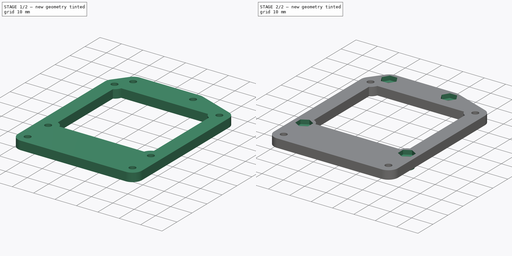
[diagram: build sequence overview — one tinted view per stage of 2, left to right]
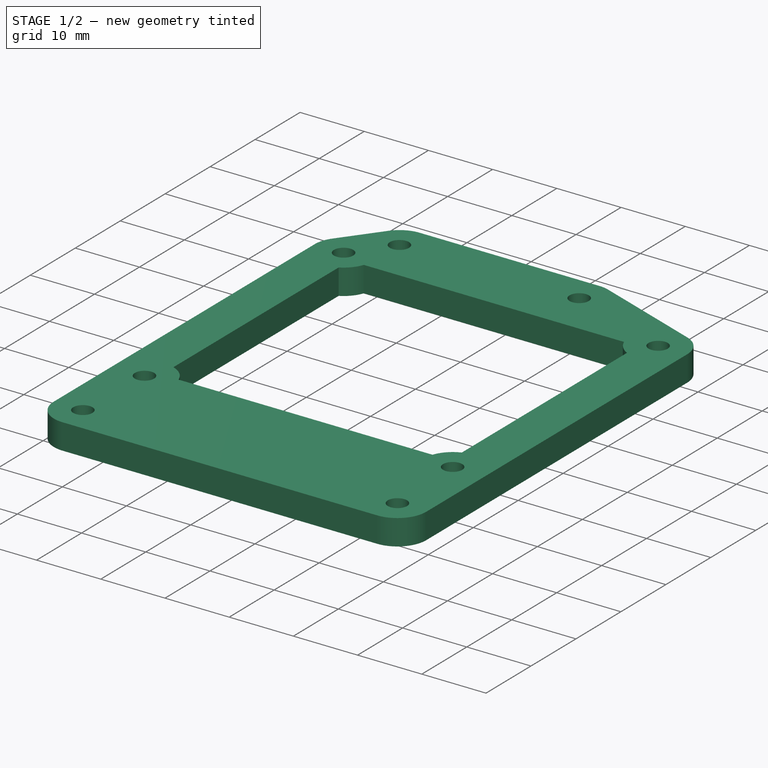
[diagram: stage 1 of 2 — iso view after this stage's code; geometry added in this stage tinted green]
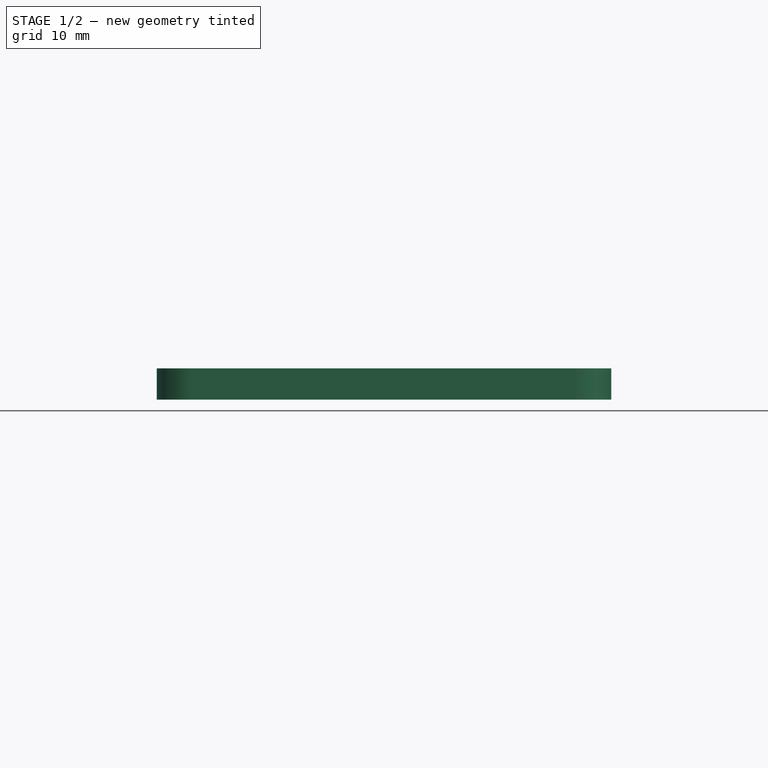
[diagram: stage 1 of 2 — front view after this stage's code; geometry added in this stage tinted green]
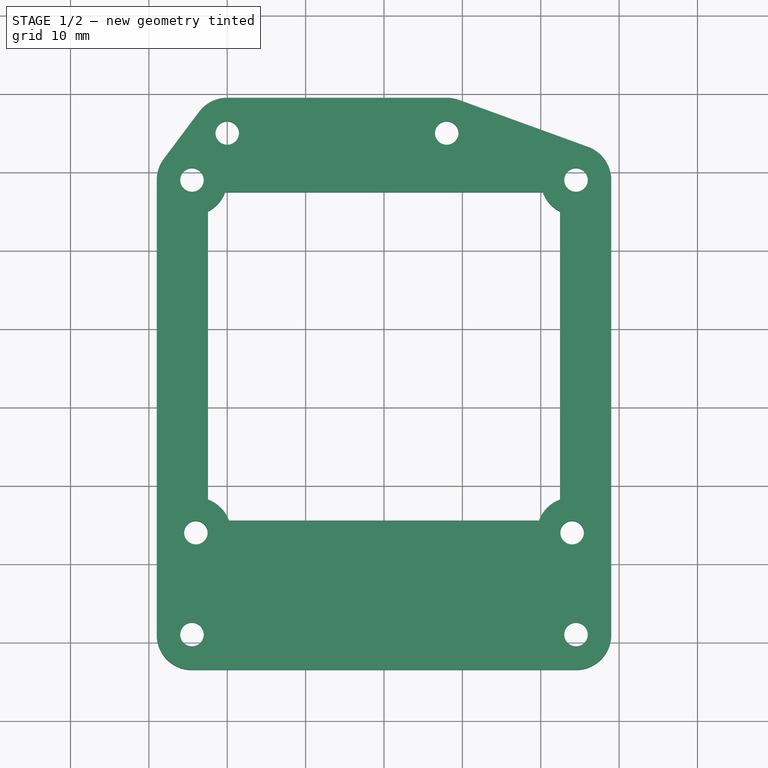
[diagram: stage 1 of 2 — top view after this stage's code; geometry added in this stage tinted green]
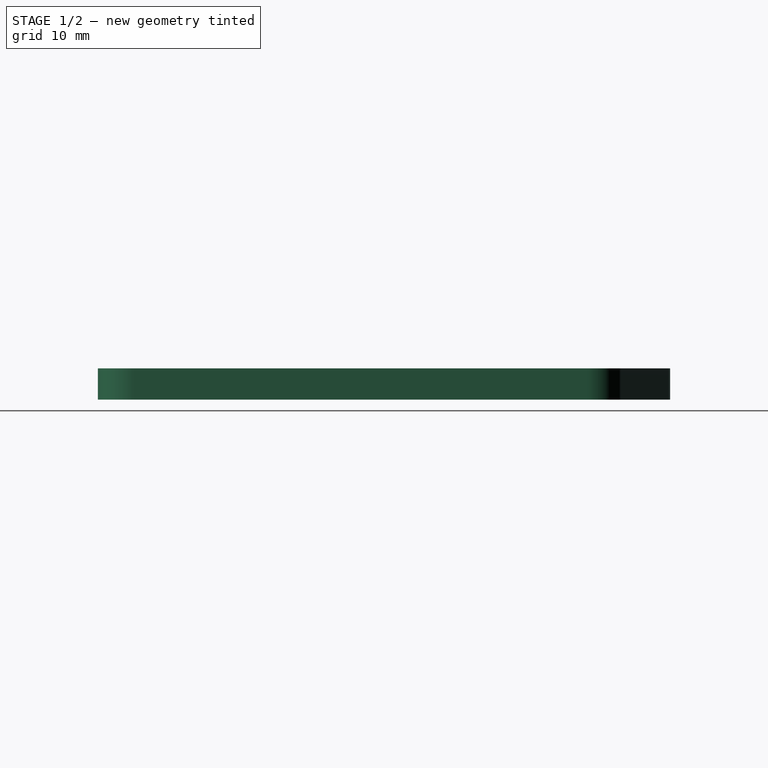
[diagram: stage 1 of 2 — right view after this stage's code; geometry added in this stage tinted green]
FCSTD DOCUMENT  (FreeCAD 0.17R13541 (Git))
Label: RaspiToUNO
License: All rights reserved
LicenseURL: http://en.wikipedia.org/wiki/All_rights_reserved
objects: Sketcher::SketchObject×4, PartDesign::Pad×2, PartDesign::Pocket×2, PartDesign::Body×1
note: 13 computed .brp shape members not serialized (recipe doc carries the construction recipe); baked Part::Feature solids carry a one-line shape summary decoded from their .brp

FEATURE [Sketcher::SketchObject] Sketch
  MapMode = 5
  Support = -> [XY_Plane]
  sketch-geometry (52):
    g0: ArcOfCircle CenterX=-24.5 CenterY=29 CenterZ=0 NormalX=0 NormalY=0 NormalZ=1 AngleXU=0 Radius=4.5 StartAngle=5.18266 EndAngle=5.93412
    g1: ArcOfCircle CenterX=24.5 CenterY=29 CenterZ=0 NormalX=0 NormalY=0 NormalZ=1 AngleXU=0 Radius=4.5 StartAngle=0 EndAngle=1.22203
    g2: ArcOfCircle CenterX=-24.5 CenterY=-29 CenterZ=0 NormalX=0 NormalY=0 NormalZ=1 AngleXU=0 Radius=4.5 StartAngle=3.14159 EndAngle=4.71239
    g3: ArcOfCircle CenterX=24.5 CenterY=-29 CenterZ=0 NormalX=0 NormalY=0 NormalZ=1 AngleXU=0 Radius=4.5 StartAngle=4.71239 EndAngle=6.28319
    g4: GeomPoint X=0 Y=29 Z=0
    g5: ArcOfCircle CenterX=-24 CenterY=-16 CenterZ=0 NormalX=0 NormalY=0 NormalZ=1 AngleXU=0 Radius=4.5 StartAngle=0.349066 EndAngle=1.22173
    g6: ArcOfCircle CenterX=24 CenterY=-16 CenterZ=0 NormalX=0 NormalY=0 NormalZ=1 AngleXU=0 Radius=4.5 StartAngle=1.91986 EndAngle=2.79253
    g7: ArcOfCircle CenterX=-20 CenterY=35 CenterZ=0 NormalX=0 NormalY=0 NormalZ=1 AngleXU=0 Radius=4.5 StartAngle=1.5708 EndAngle=2.49809
    g8: ArcOfCircle CenterX=8 CenterY=35 CenterZ=0 NormalX=0 NormalY=0 NormalZ=1 AngleXU=0 Radius=4.5 StartAngle=1.22203 EndAngle=1.5708
    g9: GeomPoint X=0 Y=-16 Z=0
    g10: GeomPoint X=0 Y=-29 Z=0
    g11: LineSegment [constr] StartX=0 StartY=-16 StartZ=0 EndX=0 EndY=-29 EndZ=0
    g12: LineSegment StartX=22.4609 StartY=-11.7714 StartZ=0 EndX=22.4609 EndY=24.9885 EndZ=0
    g13: LineSegment StartX=20.2714 StartY=27.4609 StartZ=0 EndX=-20.2714 EndY=27.4609 EndZ=0
    g14: LineSegment StartX=-22.4609 StartY=24.9885 StartZ=0 EndX=-22.4609 EndY=-11.7714 EndZ=0
    g15: Circle CenterX=-24.5 CenterY=29 CenterZ=0 NormalX=0 NormalY=0 NormalZ=1 AngleXU=0 Radius=1.5
    g16: Circle CenterX=-20 CenterY=35 CenterZ=0 NormalX=0 NormalY=0 NormalZ=1 AngleXU=0 Radius=1.5
    g17: Circle CenterX=8 CenterY=35 CenterZ=0 NormalX=0 NormalY=0 NormalZ=1 AngleXU=0 Radius=1.5
    g18: Circle CenterX=24.5 CenterY=29 CenterZ=0 NormalX=0 NormalY=0 NormalZ=1 AngleXU=0 Radius=1.5
    g19: Circle CenterX=24.5 CenterY=-29 CenterZ=0 NormalX=0 NormalY=0 NormalZ=1 AngleXU=0 Radius=1.5
    g20: Circle CenterX=-24 CenterY=-16 CenterZ=0 NormalX=0 NormalY=0 NormalZ=1 AngleXU=0 Radius=1.5
    g21: Circle CenterX=-24.5 CenterY=-29 CenterZ=0 NormalX=0 NormalY=0 NormalZ=1 AngleXU=0 Radius=1.5
    g22: ArcOfCircle CenterX=-24.5 CenterY=29 CenterZ=0 NormalX=0 NormalY=0 NormalZ=1 AngleXU=0 Radius=4.5 StartAngle=2.49809 EndAngle=3.14159
    g23: LineSegment [constr] StartX=-24 StartY=35 StartZ=0 EndX=-20 EndY=35 EndZ=0
    g24: ArcOfCircle CenterX=24.5 CenterY=29 CenterZ=0 NormalX=0 NormalY=0 NormalZ=1 AngleXU=0 Radius=4.5 StartAngle=3.49066 EndAngle=4.24211
    g25: LineSegment [constr] StartX=-24 StartY=-16 StartZ=0 EndX=24 EndY=-16 EndZ=0
    g26: LineSegment StartX=-19.7714 StartY=-14.4609 StartZ=0 EndX=19.7714 EndY=-14.4609 EndZ=0
    g27: LineSegment [constr] StartX=-20 StartY=35 StartZ=0 EndX=8 EndY=35 EndZ=0
    g28: LineSegment [constr] StartX=-22.4609 StartY=-11.7714 StartZ=0 EndX=-24 EndY=-16 EndZ=0
    g29: LineSegment [constr] StartX=-19.7714 StartY=-14.4609 StartZ=0 EndX=-24 EndY=-16 EndZ=0
    g30: LineSegment [constr] StartX=24 StartY=-16 StartZ=0 EndX=19.7714 EndY=-14.4609 EndZ=0
    g31: LineSegment [constr] StartX=24 StartY=-16 StartZ=0 EndX=22.4609 EndY=-11.7714 EndZ=0
    g32: LineSegment [constr] StartX=20.2714 StartY=27.4609 StartZ=0 EndX=24.5 EndY=29 EndZ=0
    g33: LineSegment [constr] StartX=22.4609 StartY=24.9885 StartZ=0 EndX=24.5 EndY=29 EndZ=0
    g34: LineSegment [constr] StartX=-22.4609 StartY=24.9885 StartZ=0 EndX=-24.5 EndY=29 EndZ=0
    g35: LineSegment [constr] StartX=-20.2714 StartY=27.4609 StartZ=0 EndX=-24.5 EndY=29 EndZ=0
    g36: LineSegment [constr] StartX=-24 StartY=-16 StartZ=0 EndX=-24 EndY=35 EndZ=0
    g37: LineSegment [constr] StartX=-24.5 StartY=-29 StartZ=0 EndX=24.5 EndY=-29 EndZ=0
    g38: LineSegment [constr] StartX=24.5 StartY=29 StartZ=0 EndX=24.5 EndY=-29 EndZ=0
    g39: LineSegment [constr] StartX=-24.5 StartY=29 StartZ=0 EndX=-24.5 EndY=-29 EndZ=0
    g40: LineSegment [constr] StartX=24 StartY=-16 StartZ=0 EndX=24 EndY=35 EndZ=0
    g41: LineSegment [constr] StartX=8 StartY=35 StartZ=0 EndX=24 EndY=35 EndZ=0
    g42: LineSegment [constr] StartX=-24.5 StartY=29 StartZ=0 EndX=24.5 EndY=29 EndZ=0
    g43: Circle CenterX=24 CenterY=-16 CenterZ=0 NormalX=0 NormalY=0 NormalZ=1 AngleXU=0 Radius=1.5
    g44: LineSegment [constr] StartX=-23.6 StartY=37.7 StartZ=0 EndX=-20 EndY=35 EndZ=0
    g45: LineSegment StartX=24.5 StartY=-33.5 StartZ=0 EndX=-24.5 EndY=-33.5 EndZ=0
    g46: LineSegment StartX=-29 StartY=29 StartZ=0 EndX=-29 EndY=-29 EndZ=0
    g47: LineSegment StartX=-28.1 StartY=31.7 StartZ=0 EndX=-23.6 EndY=37.7 EndZ=0
    g48: LineSegment StartX=29 StartY=-29 StartZ=0 EndX=29 EndY=29 EndZ=0
    g49: LineSegment StartX=9.53784 StartY=39.2291 StartZ=0 EndX=26.0378 EndY=33.2291 EndZ=0
    g50: GeomPoint X=-24.5 Y=0 Z=0
    g51: LineSegment StartX=-20 StartY=39.5 StartZ=0 EndX=8 EndY=39.5 EndZ=0
  constraints (121):
    c: PointOnObject(g9,g-2)
    c: Coincident(g11,g9)
    c: Coincident(g11,g10)
    c: Distance(g11) = 13
    c: Vertical(g12)
    c: Horizontal(g13)
    c: Vertical(g14)
    c: Coincident(g15,g0)
    c: Radius(g15) = 1.5
    c: Coincident(g16,g7)
    c: Coincident(g17,g8)
    c: Radius(g16) = 1.5
    c: Coincident(g18,g1)
    c: Coincident(g19,g3)
    c: Coincident(g20,g5)
    c: Coincident(g21,g2)
    c: Radius(g20) = 1.5
    c: Radius(g21) = 1.5
    c: Radius(g19) = 1.5
    c: Radius(g18) = 1.5
    c: Coincident(g0,g14)
    c: Coincident(g0,g13)
    c: Coincident(g0,g22)
    c: Coincident(g23,g7)
    c: Horizontal(g23)
    c: Coincident(g24,g12)
    c: Coincident(g24,g13)
    c: Coincident(g1,g24)
    c: Coincident(g6,g12)
    c: Coincident(g5,g14)
    c: Coincident(g25,g5)
    c: Coincident(g25,g6)
    c: Horizontal(g25)
    c: Symmetric(g25,g25,g9)
    c: Coincident(g26,g5)
    c: Coincident(g26,g6)
    c: Horizontal(g26)
    c: Coincident(g27,g7)
    c: Coincident(g27,g8)
    c: Horizontal(g27)
    c: Distance(g25) = 48
    c: Equal(g24,g1)
    c: Coincident(g28,g5)
    c: Coincident(g28,g5)
    c: Coincident(g29,g5)
    c: Coincident(g29,g5)
    c: Coincident(g30,g6)
    c: Coincident(g30,g6)
    c: Coincident(g31,g6)
    c: Coincident(g31,g6)
    c: Coincident(g32,g13)
    c: Coincident(g32,g1)
    c: Coincident(g33,g12)
    c: Coincident(g33,g1)
    c: Coincident(g34,g0)
    c: Coincident(g34,g0)
    c: Coincident(g35,g0)
    c: Coincident(g35,g0)
    c: Distance(g27) = 28
    c: Coincident(g36,g5)
    c: Coincident(g36,g23)
    c: Vertical(g36)
    c: Distance(g36) = 51
    c: Angle(g33,g1) = 0.523599
    c: Coincident(g37,g2)
    c: Coincident(g37,g3)
    c: Horizontal(g37)
    c: Distance(g37) = 49
    c: Coincident(g38,g1)
    c: Coincident(g38,g3)
    c: Vertical(g38)
    c: Coincident(g39,g0)
    c: Coincident(g39,g2)
    c: Vertical(g39)
    c: Coincident(g40,g6)
    c: Vertical(g40)
    c: Coincident(g41,g8)
    c: Coincident(g41,g40)
    c: Horizontal(g41)
    c: Coincident(g42,g0)
    c: Coincident(g42,g1)
    c: Horizontal(g42)
    c: PointOnObject(g10,g37)
    c: Coincident(g43,g6)
    c: Radius(g43) = 1.5
    c: Coincident(g44,g7)
    c: Coincident(g44,g7)
    c: Radius(g17) = 1.5
    c: Symmetric(g42,g42,g4)
    c: PointOnObject(g4,g-2)
    c: Symmetric(g37,g37,g10)
    c: Distance(g39) = 58
    c: Horizontal(g45)
    c: Coincident(g46,g2)
    c: Vertical(g46)
    c: Tangent(g46,g2)
    c: Vertical(g48)
    c: Tangent(g46,g22) = -1.5708
    c: Tangent(g47,g22) = 1.5708
    c: Tangent(g45,g2) = 1.5708
    c: Tangent(g45,g3) = 1.5708
    c: Tangent(g48,g3) = -1.5708
    c: Tangent(g48,g1) = -1.5708
    c: Tangent(g49,g1) = 1.5708
    c: Tangent(g49,g8) = 1.5708
    c: Tangent(g47,g7) = 1.5708
    c: PointOnObject(g50,g-1)
    c: Symmetric(g39,g39,g50)
    c: Equal(g0,g22)
    c: Angle(g35,g42) = 0.349066
    c: Radius(g5) = 4.5
    c: Radius(g6) = 4.5
    c: Angle(g40,g31) = 0.349066
    c: Angle(g25,g29) = 0.349066
    c: Angle(g28,g36) = 0.349066
    c: Horizontal(g51)
    c: Tangent(g51,g7) = 1.5708
    c: Tangent(g51,g8) = 1.5708
    c: Radius(g2) = 4.5
    c: Radius(g7) = 4.5
    c: Distance(g41) = 16
FEATURE [PartDesign::Pad] Pad
  Length = 2
  Length2 = 2
  Profile = -> Sketch
  Type = 4
FEATURE [Sketcher::SketchObject] Sketch001
  MapMode = 5
  Support = -> [XY_Plane]
  sketch-geometry (14):
    g0: Circle CenterX=-24.5 CenterY=-29 CenterZ=0 NormalX=0 NormalY=0 NormalZ=1 AngleXU=0 Radius=3
    g1: Circle CenterX=24.5 CenterY=-29 CenterZ=0 NormalX=0 NormalY=0 NormalZ=1 AngleXU=0 Radius=3
    g2: Circle CenterX=24.5 CenterY=29 CenterZ=0 NormalX=0 NormalY=0 NormalZ=1 AngleXU=0 Radius=3
    g3: Circle CenterX=-24.5 CenterY=29 CenterZ=0 NormalX=0 NormalY=0 NormalZ=1 AngleXU=0 Radius=3
    g4: LineSegment [constr] StartX=-24.5 StartY=29 StartZ=0 EndX=-24.5 EndY=-29 EndZ=0
    g5: LineSegment [constr] StartX=-24.5 StartY=-29 StartZ=0 EndX=24.5 EndY=-29 EndZ=0
    g6: LineSegment [constr] StartX=24.5 StartY=-29 StartZ=0 EndX=24.5 EndY=29 EndZ=0
    g7: LineSegment [constr] StartX=24.5 StartY=29 StartZ=0 EndX=-24.5 EndY=29 EndZ=0
    g8: Circle CenterX=-24.5 CenterY=29 CenterZ=0 NormalX=0 NormalY=0 NormalZ=1 AngleXU=0 Radius=1.5
    g9: Circle CenterX=24.5 CenterY=29 CenterZ=0 NormalX=0 NormalY=0 NormalZ=1 AngleXU=0 Radius=1.5
    g10: Circle CenterX=24.5 CenterY=-29 CenterZ=0 NormalX=0 NormalY=0 NormalZ=1 AngleXU=0 Radius=1.5
    g11: Circle CenterX=-24.5 CenterY=-29 CenterZ=0 NormalX=0 NormalY=0 NormalZ=1 AngleXU=0 Radius=1.5
    g12: GeomPoint X=0 Y=29 Z=0
    g13: GeomPoint X=-24.5 Y=0 Z=0
  constraints (30):
    c: Coincident(g4,g3)
    c: Coincident(g4,g0)
    c: Vertical(g4)
    c: Coincident(g5,g0)
    c: Coincident(g5,g1)
    c: Horizontal(g5)
    c: Coincident(g6,g1)
    c: Coincident(g6,g2)
    c: Vertical(g6)
    c: Coincident(g7,g2)
    c: Coincident(g7,g3)
    c: Horizontal(g7)
    c: Radius(g3) = 3
    c: Radius(g2) = 3
    c: Radius(g1) = 3
    c: Radius(g0) = 3
    c: Coincident(g8,g3)
    c: Coincident(g9,g2)
    c: Coincident(g10,g1)
    c: Coincident(g11,g0)
    c: Radius(g8) = 1.5
    c: Radius(g9) = 1.5
    c: Radius(g10) = 1.5
    c: Radius(g11) = 1.5
    c: Distance(g6) = 58
    c: Distance(g7) = 49
    c: PointOnObject(g12,g-2)
    c: PointOnObject(g13,g-1)
    c: Symmetric(g4,g4,g13)
    c: Symmetric(g7,g7,g12)
FEATURE [PartDesign::Pocket] Pocket
  BaseFeature = -> Pad
  Length = 2
  Length2 = 100
  Offset = 3
  Profile = -> Sketch001
  Type = 0
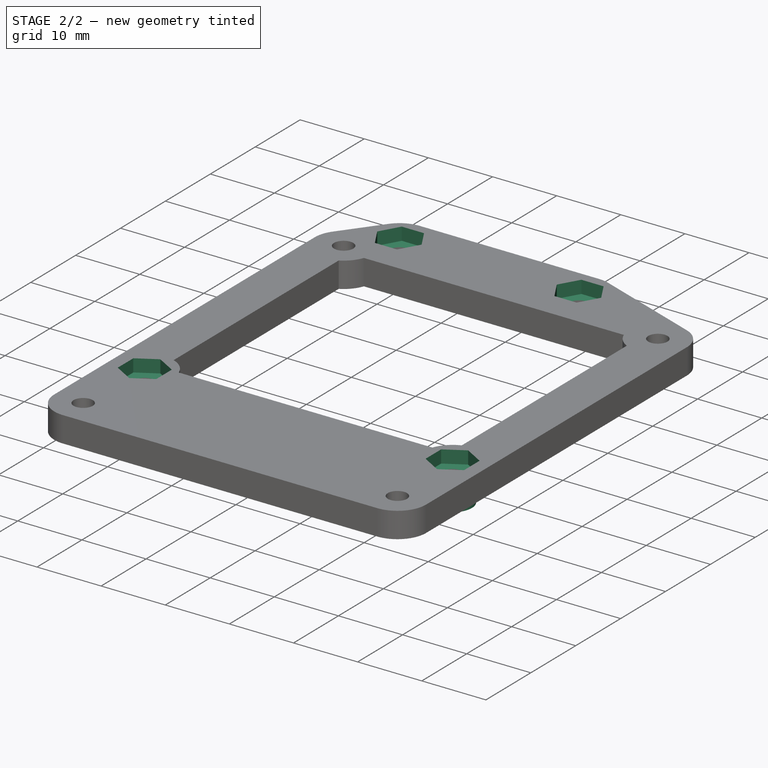
[diagram: stage 2 of 2 — iso view after this stage's code; geometry added in this stage tinted green]
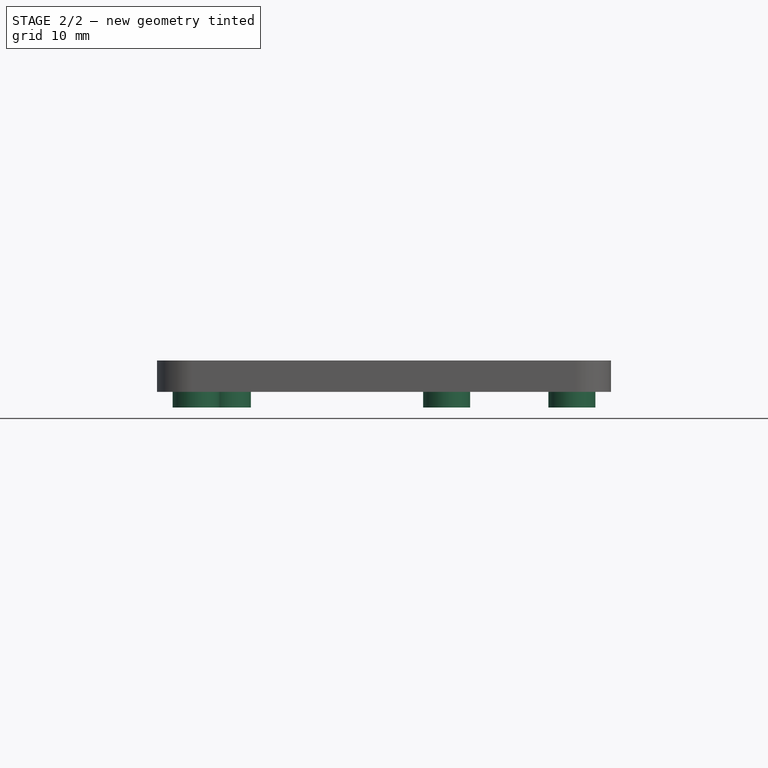
[diagram: stage 2 of 2 — front view after this stage's code; geometry added in this stage tinted green]
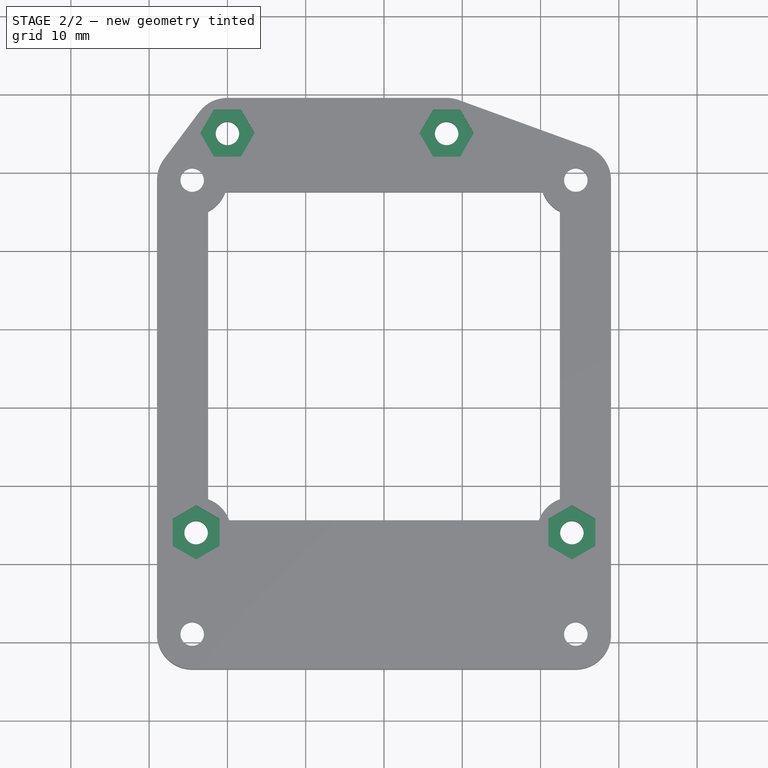
[diagram: stage 2 of 2 — top view after this stage's code; geometry added in this stage tinted green]
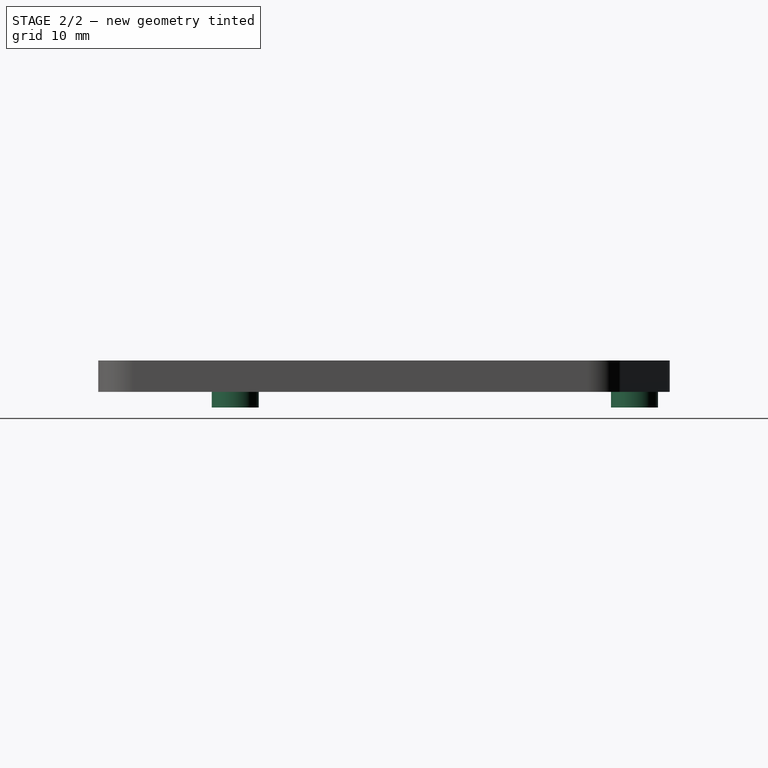
[diagram: stage 2 of 2 — right view after this stage's code; geometry added in this stage tinted green]
FEATURE [Sketcher::SketchObject] Sketch002
  MapMode = 5
  Support = -> [XY_Plane]
  sketch-geometry (22):
    g0: Circle CenterX=-20 CenterY=35 CenterZ=0 NormalX=0 NormalY=0 NormalZ=1 AngleXU=0 Radius=3
    g1: Circle CenterX=8 CenterY=35 CenterZ=0 NormalX=0 NormalY=0 NormalZ=1 AngleXU=0 Radius=3
    g2: Circle CenterX=24 CenterY=-16 CenterZ=0 NormalX=0 NormalY=0 NormalZ=1 AngleXU=0 Radius=3
    g3: Circle CenterX=-24 CenterY=-16 CenterZ=0 NormalX=0 NormalY=0 NormalZ=1 AngleXU=0 Radius=3
    g4: LineSegment [constr] StartX=-24 StartY=-16 StartZ=0 EndX=24 EndY=-16 EndZ=0
    g5: LineSegment [constr] StartX=24 StartY=-16 StartZ=0 EndX=24 EndY=35 EndZ=0
    g6: LineSegment [constr] StartX=24 StartY=35 StartZ=0 EndX=8 EndY=35 EndZ=0
    g7: LineSegment [constr] StartX=-20 StartY=35 StartZ=0 EndX=8 EndY=35 EndZ=0
    g8: LineSegment [constr] StartX=-20 StartY=35 StartZ=0 EndX=-24 EndY=35 EndZ=0
    g9: LineSegment [constr] StartX=-24 StartY=35 StartZ=0 EndX=-24 EndY=-16 EndZ=0
    g10: GeomPoint X=-24.5 Y=0 Z=0
    g11: GeomPoint X=0 Y=29 Z=0
    g12: Circle CenterX=-24 CenterY=-16 CenterZ=0 NormalX=0 NormalY=0 NormalZ=1 AngleXU=0 Radius=1.5
    g13: Circle CenterX=24 CenterY=-16 CenterZ=0 NormalX=0 NormalY=0 NormalZ=1 AngleXU=0 Radius=1.5
    g14: Circle CenterX=8 CenterY=35 CenterZ=0 NormalX=0 NormalY=0 NormalZ=1 AngleXU=0 Radius=1.5
    g15: Circle CenterX=-20 CenterY=35 CenterZ=0 NormalX=0 NormalY=0 NormalZ=1 AngleXU=0 Radius=1.5
    g16: LineSegment [constr] StartX=-24.5 StartY=-29 StartZ=0 EndX=24.5 EndY=-29 EndZ=0
    g17: LineSegment [constr] StartX=-24.5 StartY=-29 StartZ=0 EndX=-24.5 EndY=29 EndZ=0
    g18: LineSegment [constr] StartX=-24.5 StartY=29 StartZ=0 EndX=24.5 EndY=29 EndZ=0
    g19: LineSegment [constr] StartX=24.5 StartY=29 StartZ=0 EndX=24.5 EndY=-29 EndZ=0
    g20: GeomPoint X=0 Y=-16 Z=0
    g21: LineSegment StartX=0 StartY=-16 StartZ=0 EndX=0 EndY=-29 EndZ=0
  constraints (52):
    c: Radius(g0) = 3
    c: Radius(g1) = 3
    c: Radius(g2) = 3
    c: Radius(g3) = 3
    c: Coincident(g4,g3)
    c: Coincident(g4,g2)
    c: Horizontal(g4)
    c: Coincident(g5,g2)
    c: Vertical(g5)
    c: Coincident(g6,g5)
    c: Coincident(g6,g1)
    c: Coincident(g7,g0)
    c: Coincident(g7,g1)
    c: Horizontal(g7)
    c: Coincident(g8,g0)
    c: Horizontal(g8)
    c: Coincident(g9,g8)
    c: Coincident(g9,g3)
    c: Vertical(g9)
    c: Horizontal(g6)
    c: Distance(g7) = 28
    c: Distance(g4) = 48
    c: Distance(g9) = 51
    c: PointOnObject(g10,g-1)
    c: PointOnObject(g11,g-2)
    c: Coincident(g12,g3)
    c: Coincident(g13,g2)
    c: Coincident(g14,g1)
    c: Coincident(g15,g0)
    c: Radius(g15) = 1.5
    c: Radius(g14) = 1.5
    c: Radius(g13) = 1.5
    c: Radius(g12) = 1.5
    c: Horizontal(g16)
    c: Coincident(g17,g16)
    c: Vertical(g17)
    c: Coincident(g18,g17)
    c: Horizontal(g18)
    c: Coincident(g19,g18)
    c: Coincident(g19,g16)
    c: Vertical(g19)
    c: Distance(g19) = 58
    c: Distance(g18) = 49
    c: Symmetric(g17,g17,g10)
    c: Symmetric(g18,g18,g11)
    c: PointOnObject(g20,g-2)
    c: Symmetric(g4,g4,g20)
    c: Coincident(g21,g20)
    c: PointOnObject(g21,g16)
    c: Vertical(g21)
    c: Distance(g21) = 13
    c: Distance(g6) = 16
FEATURE [PartDesign::Pad] Pad001
  BaseFeature = -> Pocket
  Length = 4
  Length2 = 100
  Profile = -> Sketch002
  Reversed = true
  Type = 0
FEATURE [Sketcher::SketchObject] Sketch003
  MapMode = 5
  Support = -> [XY_Plane]
  sketch-geometry (51):
    g0: LineSegment StartX=-16.5359 StartY=35 StartZ=0 EndX=-18.2679 EndY=38 EndZ=0
    g1: LineSegment StartX=-18.2679 StartY=38 StartZ=0 EndX=-21.7321 EndY=38 EndZ=0
    g2: LineSegment StartX=-21.7321 StartY=38 StartZ=0 EndX=-23.4641 EndY=35 EndZ=0
    g3: LineSegment StartX=-23.4641 StartY=35 StartZ=0 EndX=-21.7321 EndY=32 EndZ=0
    g4: LineSegment StartX=-21.7321 StartY=32 StartZ=0 EndX=-18.2679 EndY=32 EndZ=0
    g5: LineSegment StartX=-18.2679 StartY=32 StartZ=0 EndX=-16.5359 EndY=35 EndZ=0
    g6: Circle [constr] CenterX=-20 CenterY=35 CenterZ=0 NormalX=0 NormalY=0 NormalZ=1 AngleXU=0 Radius=3.4641
    g7: LineSegment StartX=11.4641 StartY=35 StartZ=0 EndX=9.73205 EndY=38 EndZ=0
    g8: LineSegment StartX=9.73205 StartY=38 StartZ=0 EndX=6.26795 EndY=38 EndZ=0
    g9: LineSegment StartX=6.26795 StartY=38 StartZ=0 EndX=4.5359 EndY=35 EndZ=0
    g10: LineSegment StartX=4.5359 StartY=35 StartZ=0 EndX=6.26795 EndY=32 EndZ=0
    g11: LineSegment StartX=6.26795 StartY=32 StartZ=0 EndX=9.73205 EndY=32 EndZ=0
    g12: LineSegment StartX=9.73205 StartY=32 StartZ=0 EndX=11.4641 EndY=35 EndZ=0
    g13: Circle [constr] CenterX=8 CenterY=35 CenterZ=0 NormalX=0 NormalY=0 NormalZ=1 AngleXU=0 Radius=3.4641
    g14: LineSegment StartX=24 StartY=-19.4641 StartZ=0 EndX=27 EndY=-17.7321 EndZ=0
    g15: LineSegment StartX=27 StartY=-17.7321 StartZ=0 EndX=27 EndY=-14.2679 EndZ=0
    g16: LineSegment StartX=27 StartY=-14.2679 StartZ=0 EndX=24 EndY=-12.5359 EndZ=0
    g17: LineSegment StartX=24 StartY=-12.5359 StartZ=0 EndX=21 EndY=-14.2679 EndZ=0
    g18: LineSegment StartX=21 StartY=-14.2679 StartZ=0 EndX=21 EndY=-17.7321 EndZ=0
    g19: LineSegment StartX=21 StartY=-17.7321 StartZ=0 EndX=24 EndY=-19.4641 EndZ=0
    g20: Circle [constr] CenterX=24 CenterY=-16 CenterZ=0 NormalX=0 NormalY=0 NormalZ=1 AngleXU=0 Radius=3.4641
    g21: LineSegment StartX=-21 StartY=-17.7321 StartZ=0 EndX=-21 EndY=-14.2679 EndZ=0
    g22: LineSegment StartX=-21 StartY=-14.2679 StartZ=0 EndX=-24 EndY=-12.5359 EndZ=0
    g23: LineSegment StartX=-24 StartY=-12.5359 StartZ=0 EndX=-27 EndY=-14.2679 EndZ=0
    g24: LineSegment StartX=-27 StartY=-14.2679 StartZ=0 EndX=-27 EndY=-17.7321 EndZ=0
    g25: LineSegment StartX=-27 StartY=-17.7321 StartZ=0 EndX=-24 EndY=-19.4641 EndZ=0
    g26: LineSegment StartX=-24 StartY=-19.4641 StartZ=0 EndX=-21 EndY=-17.7321 EndZ=0
    g27: Circle [constr] CenterX=-24 CenterY=-16 CenterZ=0 NormalX=0 NormalY=0 NormalZ=1 AngleXU=0 Radius=3.4641
    g28: LineSegment [constr] StartX=-24 StartY=-16 StartZ=0 EndX=24 EndY=-16 EndZ=0
    g29: LineSegment [constr] StartX=-24 StartY=-16 StartZ=0 EndX=-24 EndY=35 EndZ=0
    g30: LineSegment [constr] StartX=24 StartY=-16 StartZ=0 EndX=24 EndY=35 EndZ=0
    g31: LineSegment [constr] StartX=24 StartY=35 StartZ=0 EndX=8 EndY=35 EndZ=0
    g32: LineSegment [constr] StartX=-24 StartY=35 StartZ=0 EndX=-20 EndY=35 EndZ=0
    g33: LineSegment [constr] StartX=-20 StartY=35 StartZ=0 EndX=8 EndY=35 EndZ=0
    g34: GeomPoint X=0 Y=-16 Z=0
    g35: Circle CenterX=-24 CenterY=-16 CenterZ=0 NormalX=0 NormalY=0 NormalZ=1 AngleXU=0 Radius=1.5
    g36: Circle CenterX=24 CenterY=-16 CenterZ=0 NormalX=0 NormalY=0 NormalZ=1 AngleXU=0 Radius=1.5
    g37: Circle CenterX=8 CenterY=35 CenterZ=0 NormalX=0 NormalY=0 NormalZ=1 AngleXU=0 Radius=1.5
    g38: Circle CenterX=-20 CenterY=35 CenterZ=0 NormalX=0 NormalY=0 NormalZ=1 AngleXU=0 Radius=1.5
    g39: LineSegment [constr] StartX=-24.5 StartY=29 StartZ=0 EndX=-24.5 EndY=-29 EndZ=0
    g40: LineSegment [constr] StartX=-24.5 StartY=-29 StartZ=0 EndX=24.5 EndY=-29 EndZ=0
    g41: LineSegment [constr] StartX=24.5 StartY=-29 StartZ=0 EndX=24.5 EndY=29 EndZ=0
    g42: LineSegment [constr] StartX=24.5 StartY=29 StartZ=0 EndX=-24.5 EndY=29 EndZ=0
    g43: GeomPoint X=0 Y=-29 Z=0
    g44: GeomPoint X=-24.5 Y=0 Z=0
    g45: LineSegment [constr] StartX=0 StartY=-29 StartZ=0 EndX=0 EndY=-16 EndZ=0
    g46: LineSegment [constr] StartX=0 StartY=-16 StartZ=0 EndX=0 EndY=-29 EndZ=0
    g47: LineSegment [constr] StartX=-21.7321 StartY=38 StartZ=0 EndX=-21.7321 EndY=32 EndZ=0
    g48: LineSegment [constr] StartX=6.26795 StartY=38 StartZ=0 EndX=6.26795 EndY=32 EndZ=0
    g49: LineSegment [constr] StartX=27 StartY=-14.2679 StartZ=0 EndX=21 EndY=-14.2679 EndZ=0
    g50: LineSegment [constr] StartX=-27 StartY=-14.2679 StartZ=0 EndX=-21 EndY=-14.2679 EndZ=0
  constraints (117):
    c: Coincident(g0,g1)
    c: Coincident(g1,g2)
    c: Coincident(g2,g3)
    c: Coincident(g3,g4)
    c: Coincident(g4,g5)
    c: Coincident(g5,g0)
    c: Equal(g0, g1-g5) x5
    c: PointOnObject(g0,g6)
    c: PointOnObject(g1,g6)
    c: PointOnObject(g2,g6)
    c: PointOnObject(g3,g6)
    c: PointOnObject(g4,g6)
    c: PointOnObject(g5,g6)
    c: Coincident(g7,g8)
    c: Coincident(g8,g9)
    c: Coincident(g9,g10)
    c: Coincident(g10,g11)
    c: Coincident(g11,g12)
    c: Coincident(g12,g7)
    c: Equal(g7, g8-g12) x5
    c: PointOnObject(g7,g13)
    c: PointOnObject(g8,g13)
    c: PointOnObject(g9,g13)
    c: PointOnObject(g10,g13)
    c: PointOnObject(g11,g13)
    c: PointOnObject(g12,g13)
    c: Coincident(g14,g15)
    c: Coincident(g15,g16)
    c: Coincident(g16,g17)
    c: Coincident(g17,g18)
    c: Coincident(g18,g19)
    c: Coincident(g19,g14)
    c: Equal(g14, g15-g19) x5
    c: PointOnObject(g14,g20)
    c: PointOnObject(g15,g20)
    c: PointOnObject(g16,g20)
    c: PointOnObject(g17,g20)
    c: PointOnObject(g18,g20)
    c: PointOnObject(g19,g20)
    c: Coincident(g21,g22)
    c: Coincident(g22,g23)
    c: Coincident(g23,g24)
    c: Coincident(g24,g25)
    c: Coincident(g25,g26)
    c: Coincident(g26,g21)
    c: Equal(g21, g22-g26) x5
    c: PointOnObject(g21,g27)
    c: PointOnObject(g22,g27)
    c: PointOnObject(g23,g27)
    c: PointOnObject(g24,g27)
    c: PointOnObject(g25,g27)
    c: PointOnObject(g26,g27)
    c: Coincident(g28,g27)
    c: Coincident(g28,g20)
    c: Horizontal(g28)
    c: Coincident(g29,g27)
    c: Vertical(g29)
    c: Coincident(g30,g20)
    c: Vertical(g30)
    c: Coincident(g31,g30)
    c: Coincident(g31,g13)
    c: Horizontal(g31)
    c: Coincident(g32,g29)
    c: Coincident(g32,g6)
    c: Horizontal(g32)
    c: Coincident(g33,g6)
    c: Coincident(g33,g13)
    c: Horizontal(g33)
    c: PointOnObject(g34,g-2)
    c: Symmetric(g28,g28,g34)
    c: Coincident(g35,g27)
    c: Radius(g35) = 1.5
    c: PointOnObject(g22,g29)
    c: PointOnObject(g16,g30)
    c: Coincident(g36,g20)
    c: Radius(g36) = 1.5
    c: Coincident(g37,g13)
    c: Radius(g37) = 1.5
    c: Coincident(g38,g6)
    c: Radius(g38) = 1.5
    c: Distance(g28) = 48
    c: Distance(g33) = 28
    c: Distance(g29) = 51
    c: Vertical(g39)
    c: Coincident(g40,g39)
    c: Horizontal(g40)
    c: Coincident(g41,g40)
    c: Vertical(g41)
    c: Coincident(g42,g41)
    c: Coincident(g42,g39)
    c: Horizontal(g42)
    c: Distance(g39) = 58
    c: Distance(g40) = 49
    c: PointOnObject(g43,g-2)
    c: Symmetric(g40,g40,g43)
    c: PointOnObject(g44,g-1)
    c: Symmetric(g39,g39,g44)
    c: Coincident(g45,g43)
    c: Coincident(g45,g34)
    c: Coincident(g46,g34)
    c: Coincident(g46,g43)
    c: Distance(g34,g43) = 13
    c: PointOnObject(g0,g33)
    c: PointOnObject(g9,g33)
    c: Coincident(g47,g1)
    c: Coincident(g47,g3)
    c: Distance(g47) = 6
    c: Coincident(g48,g8)
    c: Coincident(g48,g10)
    c: Distance(g48) = 6
    c: Coincident(g49,g15)
    c: Coincident(g49,g17)
    c: Distance(g49) = 6
    c: Coincident(g50,g23)
    c: Coincident(g50,g21)
    c: Distance(g50) = 6
    c: Distance(g31) = 16
FEATURE [PartDesign::Pocket] Pocket001
  BaseFeature = -> Pad001
  Length = 5
  Length2 = 100
  Offset = 5
  Profile = -> Sketch003
  Reversed = true
  Type = 0
FEATURE [PartDesign::Body] Body
  Group = -> [Sketch,Pad,Sketch001,Pocket,Sketch002,Pad001,Sketch003,Pocket001]
  Origin = -> Origin
  Tip = -> Pocket001
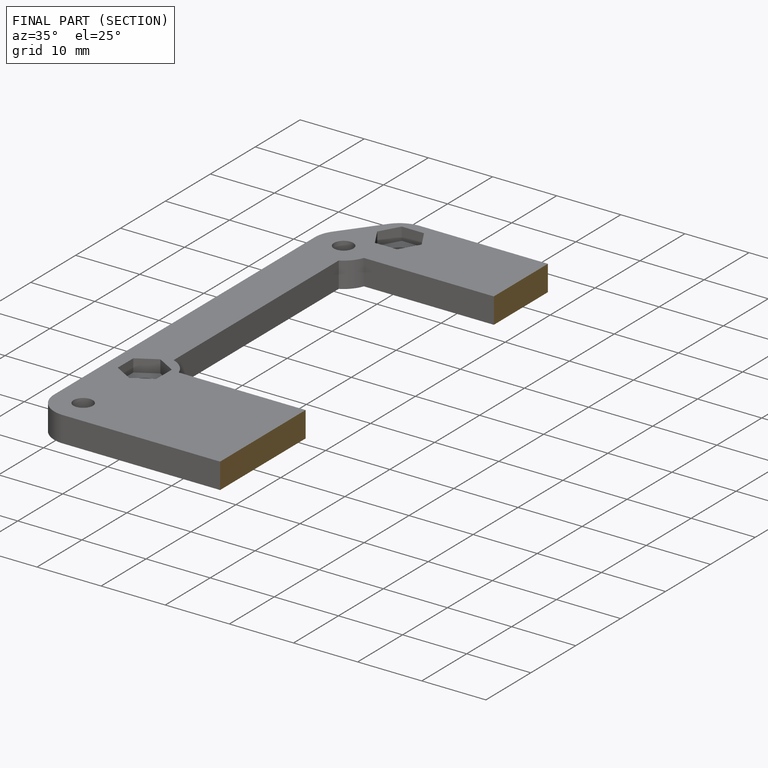
[diagram: finished part — half-section view (interior)]
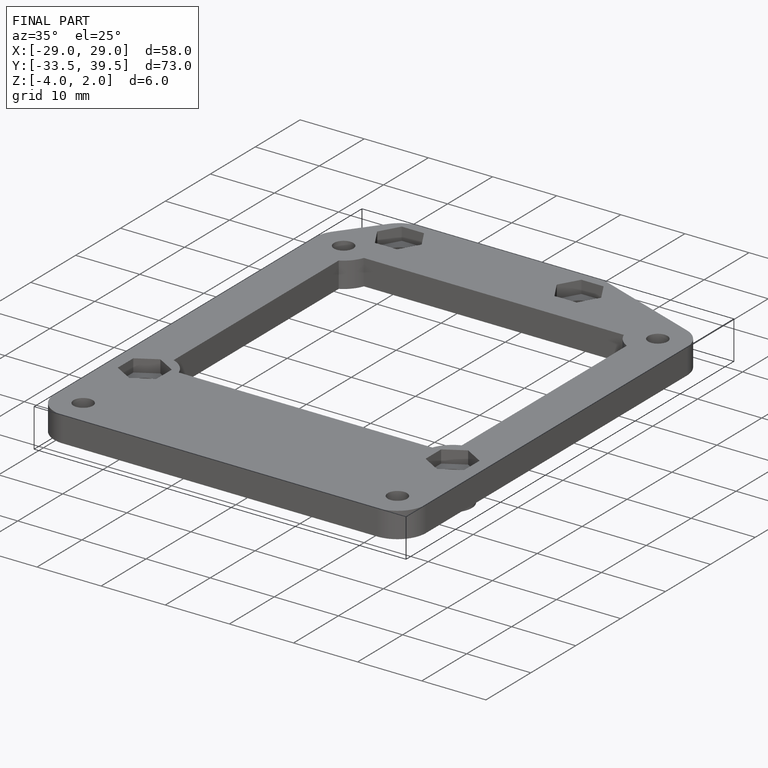
[diagram: finished part — iso view with bounding-box wireframe]
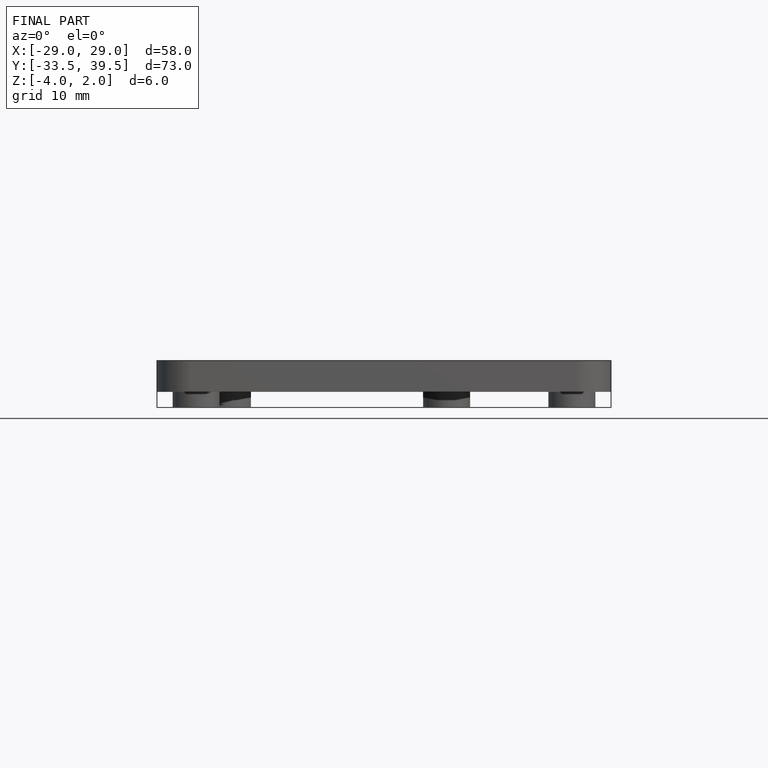
[diagram: finished part — front view with bounding-box wireframe]
